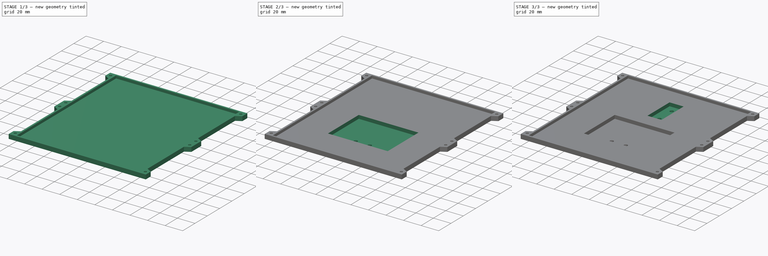
[diagram: build sequence overview — one tinted view per stage of 3, left to right]
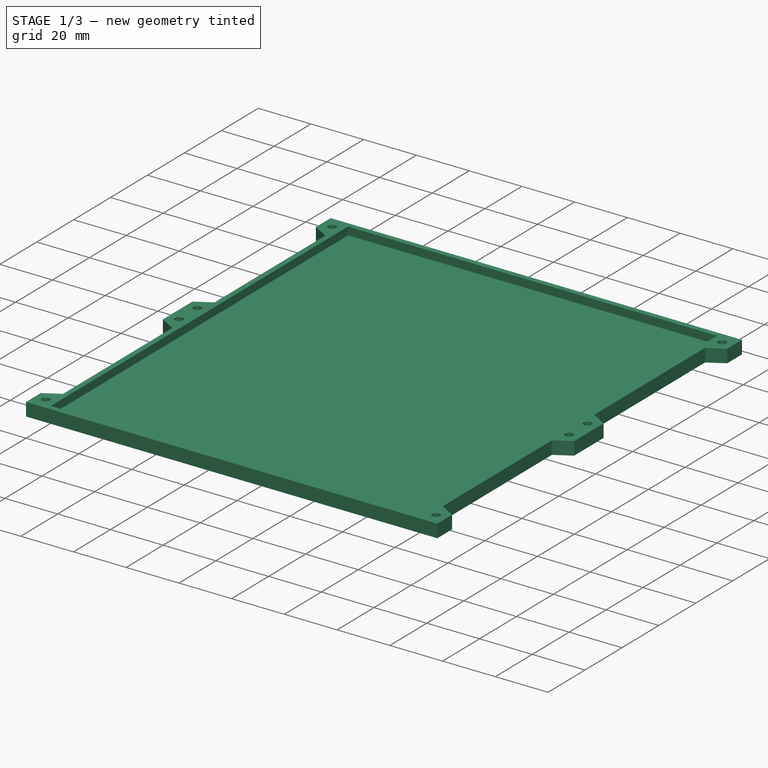
[diagram: stage 1 of 3 — iso view after this stage's code; geometry added in this stage tinted green]
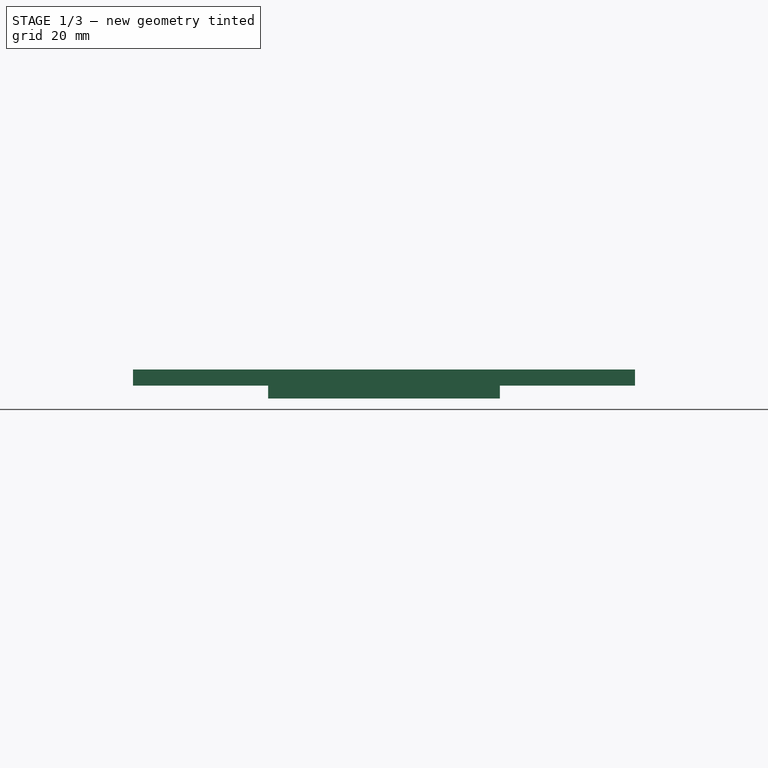
[diagram: stage 1 of 3 — front view after this stage's code; geometry added in this stage tinted green]
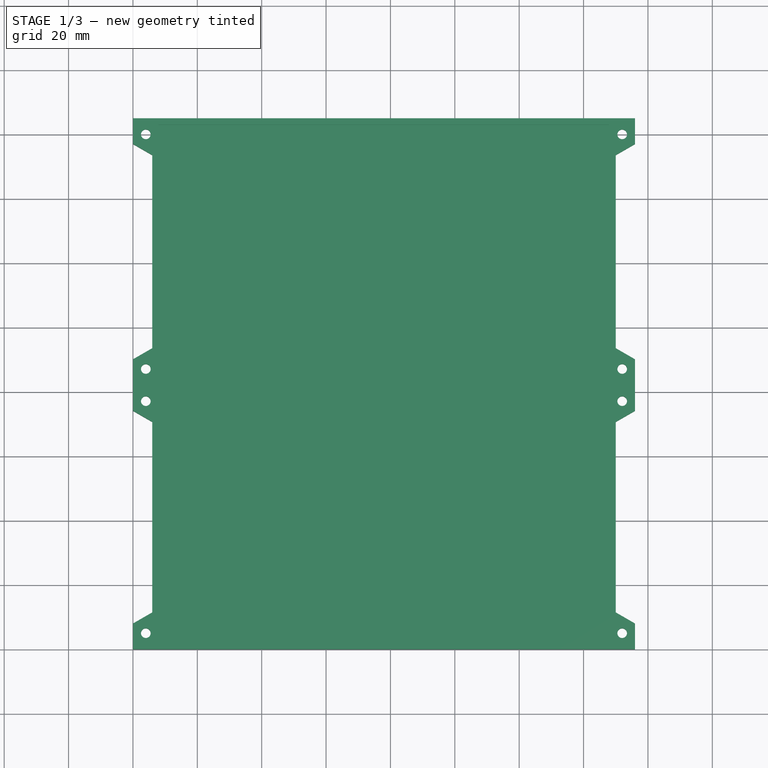
[diagram: stage 1 of 3 — top view after this stage's code; geometry added in this stage tinted green]
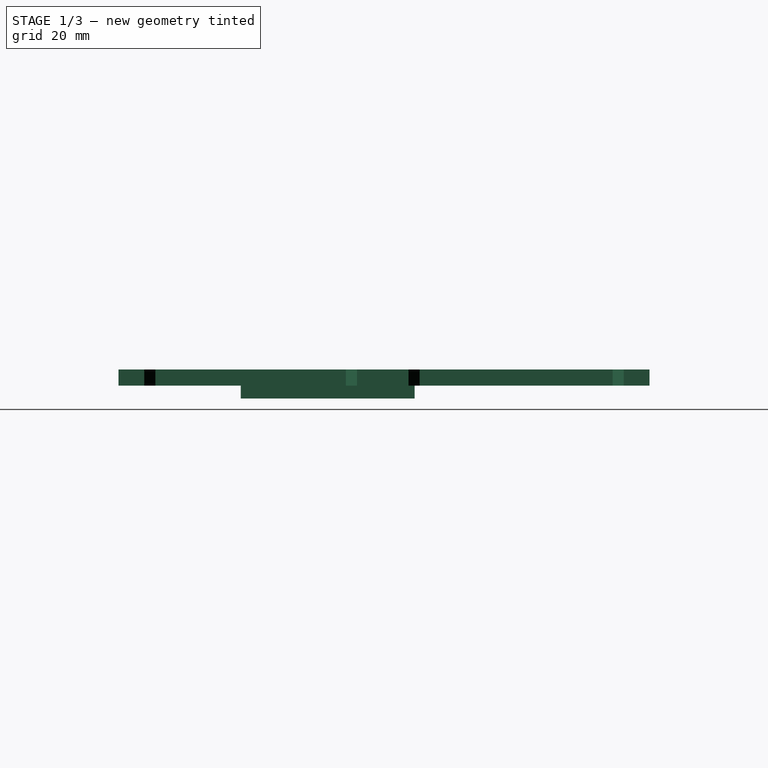
[diagram: stage 1 of 3 — right view after this stage's code; geometry added in this stage tinted green]
FCSTD DOCUMENT  (FreeCAD 0.14R3703 (Git))
Label: panel-holder
License: CC-BY 3.0
LicenseURL: http://creativecommons.org/licenses/by/3.0/
objects: Sketcher::SketchObject×8, PartDesign::Pocket×5, PartDesign::Pad×3, Part::Feature×1
note: 25 computed .brp shape members not serialized (recipe doc carries the construction recipe); baked Part::Feature solids carry a one-line shape summary decoded from their .brp

FEATURE [Sketcher::SketchObject] Sketch  label="MainShapePadSketch"
  sketch-geometry (29):
    g0: LineSegment StartX=0 StartY=0 StartZ=0 EndX=0 EndY=8 EndZ=0
    g1: LineSegment StartX=0 StartY=8 StartZ=0 EndX=6 EndY=11.4641 EndZ=0
    g2: LineSegment StartX=6 StartY=11.4641 StartZ=0 EndX=6 EndY=70.6359 EndZ=0
    g3: LineSegment StartX=6 StartY=70.6359 StartZ=0 EndX=0 EndY=74.1 EndZ=0
    g4: LineSegment StartX=0 StartY=74.1 StartZ=0 EndX=0 EndY=90.1 EndZ=0
    g5: LineSegment StartX=0 StartY=90.1 StartZ=0 EndX=6 EndY=93.5641 EndZ=0
    g6: LineSegment StartX=6 StartY=93.5641 StartZ=0 EndX=6 EndY=153.536 EndZ=0
    g7: LineSegment StartX=6 StartY=153.536 StartZ=0 EndX=0 EndY=157 EndZ=0
    g8: LineSegment StartX=0 StartY=157 StartZ=0 EndX=0 EndY=165 EndZ=0
    g9: LineSegment StartX=0 StartY=165 StartZ=0 EndX=156 EndY=165 EndZ=0
    g10: LineSegment StartX=156 StartY=165 StartZ=0 EndX=156 EndY=157 EndZ=0
    g11: LineSegment StartX=156 StartY=157 StartZ=0 EndX=150 EndY=153.536 EndZ=0
    g12: LineSegment StartX=150 StartY=153.536 StartZ=0 EndX=150 EndY=93.5641 EndZ=0
    g13: LineSegment StartX=150 StartY=93.5641 StartZ=0 EndX=156 EndY=90.1 EndZ=0
    g14: LineSegment StartX=156 StartY=90.1 StartZ=0 EndX=156 EndY=74.1 EndZ=0
    g15: LineSegment StartX=156 StartY=74.1 StartZ=0 EndX=150 EndY=70.6359 EndZ=0
    g16: LineSegment StartX=150 StartY=70.6359 StartZ=0 EndX=150 EndY=11.4641 EndZ=0
    g17: LineSegment StartX=150 StartY=11.4641 StartZ=0 EndX=156 EndY=8 EndZ=0
    g18: LineSegment StartX=156 StartY=8 StartZ=0 EndX=156 EndY=0 EndZ=0
    g19: LineSegment StartX=156 StartY=0 StartZ=0 EndX=0 EndY=0 EndZ=0
    g20: LineSegment [constr] StartX=-65 StartY=82.1 StartZ=0 EndX=235 EndY=82.1 EndZ=0
    g21: Circle CenterX=4 CenterY=5 CenterZ=0 NormalX=0 NormalY=0 NormalZ=1 Radius=1.5
    g22: Circle CenterX=152 CenterY=5 CenterZ=0 NormalX=0 NormalY=0 NormalZ=1 Radius=1.5
    g23: Circle CenterX=4 CenterY=87.1 CenterZ=0 NormalX=0 NormalY=0 NormalZ=1 Radius=1.5
    g24: Circle CenterX=4 CenterY=77.1 CenterZ=0 NormalX=0 NormalY=0 NormalZ=1 Radius=1.5
    g25: Circle CenterX=4 CenterY=160 CenterZ=0 NormalX=0 NormalY=0 NormalZ=1 Radius=1.5
    g26: Circle CenterX=152 CenterY=160 CenterZ=0 NormalX=0 NormalY=0 NormalZ=1 Radius=1.5
    g27: Circle CenterX=152 CenterY=87.1 CenterZ=0 NormalX=0 NormalY=0 NormalZ=1 Radius=1.5
    g28: Circle CenterX=152 CenterY=77.1 CenterZ=0 NormalX=0 NormalY=0 NormalZ=1 Radius=1.5
  constraints (85):
    c: Coincident(g-1,g0)
    c: Coincident(g0,g1)
    c: Coincident(g1,g2)
    c: Coincident(g2,g3)
    c: Coincident(g3,g4)
    c: Coincident(g4,g5)
    c: Coincident(g5,g6)
    c: Vertical(g6)
    c: Coincident(g6,g7)
    c: Vertical(g8)
    c: Coincident(g8,g9)
    c: Horizontal(g9)
    c: Coincident(g9,g10)
    c: Vertical(g10)
    c: Coincident(g10,g11)
    c: Coincident(g11,g12)
    c: Vertical(g12)
    c: Coincident(g12,g13)
    c: Coincident(g13,g14)
    c: Vertical(g14)
    c: Coincident(g14,g15)
    c: Coincident(g15,g16)
    c: Vertical(g16)
    c: Coincident(g16,g17)
    c: Coincident(g17,g18)
    c: PointOnObject(g18,g-1)
    c: Vertical(g18)
    c: Coincident(g18,g19)
    c: Coincident(g19,g0)
    c: Vertical(g0)
    c: Angle(g2,g1) = 2.0944
    c: Distance(g19) = 156
    c: Distance(g9) = 156
    c: PointOnObject(g8,g-2)
    c: DistanceY(g10) = -8
    c: DistanceY(g8) = 8
    c: Angle(g12,g11) = 2.0944
    c: Angle(g7,g6) = 2.0944
    c: DistanceX(g6,g7) = -6
    c: DistanceX(g11,g10) = 6
    c: DistanceY(g18,g9) = 165
    c: DistanceX(g17,g16) = -6
    c: Angle(g17,g16) = 2.0944
    c: Angle(g16,g15) = 2.0944
    c: Angle(g13,g12) = 2.0944
    c: Angle(g6,g5) = 2.0944
    c: Angle(g3,g2) = 2.0944
    c: DistanceY(g18,g17) = 8
    c: DistanceY(g14,g13) = 16
    c: DistanceY(g4) = 16
    c: DistanceY(g-1,g20) = 82.1
    c: Symmetric(g4,g3,g20)
    c: Symmetric(g13,g14,g20)
    c: Vertical(g2)
    c: DistanceX(g13,g12) = -6
    c: DistanceX(g3,g2) = 6
    c: DistanceX(g4,g5) = 6
    c: Coincident(g7,g8)
    c: DistanceX(g20) = 300
    c: DistanceY(g0) = 8
    c: DistanceX(g-1,g20) = -65
    c: DistanceY(g7,g25) = 3
    c: DistanceX(g7,g25) = 4
    c: DistanceX(g10,g26) = -4
    c: DistanceY(g10,g26) = 3
    c: DistanceY(g27,g13) = 3
    c: DistanceX(g27,g13) = 4
    c: DistanceX(g14,g28) = -4
    c: DistanceY(g28,g14) = -3
    c: DistanceX(g22,g17) = 4
    c: DistanceY(g17,g22) = -3
    c: DistanceY(g21,g0) = 3
    c: DistanceX(g21,g0) = -4
    c: DistanceY(g24,g3) = -3
    c: DistanceX(g24,g3) = -4
    c: DistanceY(g4,g23) = -3
    c: DistanceX(g23,g4) = -4
    c: Radius(g21) = 1.5
    c: Equal(g21,g22)
    c: Equal(g22,g28)
    c: Equal(g28,g27)
    c: Equal(g27,g26)
    c: Equal(g26,g25)
    c: Equal(g25,g23)
    c: Equal(g23,g24)
FEATURE [PartDesign::Pad] Pad  label="MainShapePad"
  Length = 5
  Length2 = 100
  Sketch = -> Sketch
  Type = 0
FEATURE [Sketcher::SketchObject] Sketch001  label="PanelPocketSketch"
  Placement = pos=(0,0,5) rot=(0,0,1;0rad)
  Support = -> Pad [Face30]
  sketch-geometry (4):
    g0: LineSegment StartX=8 StartY=2 StartZ=0 EndX=148 EndY=2 EndZ=0
    g1: LineSegment StartX=148 StartY=2 StartZ=0 EndX=148 EndY=163 EndZ=0
    g2: LineSegment StartX=148 StartY=163 StartZ=0 EndX=8 EndY=163 EndZ=0
    g3: LineSegment StartX=8 StartY=163 StartZ=0 EndX=8 EndY=2 EndZ=0
  constraints (12):
    c: Coincident(g0,g1)
    c: Coincident(g1,g2)
    c: Coincident(g2,g3)
    c: Coincident(g3,g0)
    c: Horizontal(g0)
    c: Horizontal(g2)
    c: Vertical(g1)
    c: Vertical(g3)
    c: DistanceY(g1) = 161
    c: DistanceX(g2) = -140
    c: DistanceX(g-1,g0) = 8
    c: DistanceY(g-1,g0) = 2
FEATURE [PartDesign::Pocket] Pocket001  label="PanelPocket"
  Length = 3
  Sketch = -> Sketch001
  Type = 0
FEATURE [Sketcher::SketchObject] Sketch002  label="SolderJointPadSketch"
  Placement = pos=(0,0,0) rot=(1,0,0;3.14159rad)
  Support = -> Pocket001 [Face4]
  sketch-geometry (4):
    g0: LineSegment StartX=42 StartY=-38 StartZ=0 EndX=114 EndY=-38 EndZ=0
    g1: LineSegment StartX=114 StartY=-38 StartZ=0 EndX=114 EndY=-92 EndZ=0
    g2: LineSegment StartX=114 StartY=-92 StartZ=0 EndX=42 EndY=-92 EndZ=0
    g3: LineSegment StartX=42 StartY=-92 StartZ=0 EndX=42 EndY=-38 EndZ=0
  constraints (12):
    c: Coincident(g0,g1)
    c: Coincident(g1,g2)
    c: Coincident(g2,g3)
    c: Coincident(g3,g0)
    c: Horizontal(g0)
    c: Horizontal(g2)
    c: Vertical(g1)
    c: Vertical(g3)
    c: DistanceY(g1) = -54
    c: DistanceX(g-1,g0) = 42
    c: DistanceY(g-1,g0) = -38
    c: DistanceX(g2) = -72
FEATURE [PartDesign::Pad] Pad001  label="SolderJointPad"
  Length = 4
  Length2 = 100
  Sketch = -> Sketch002
  Type = 0
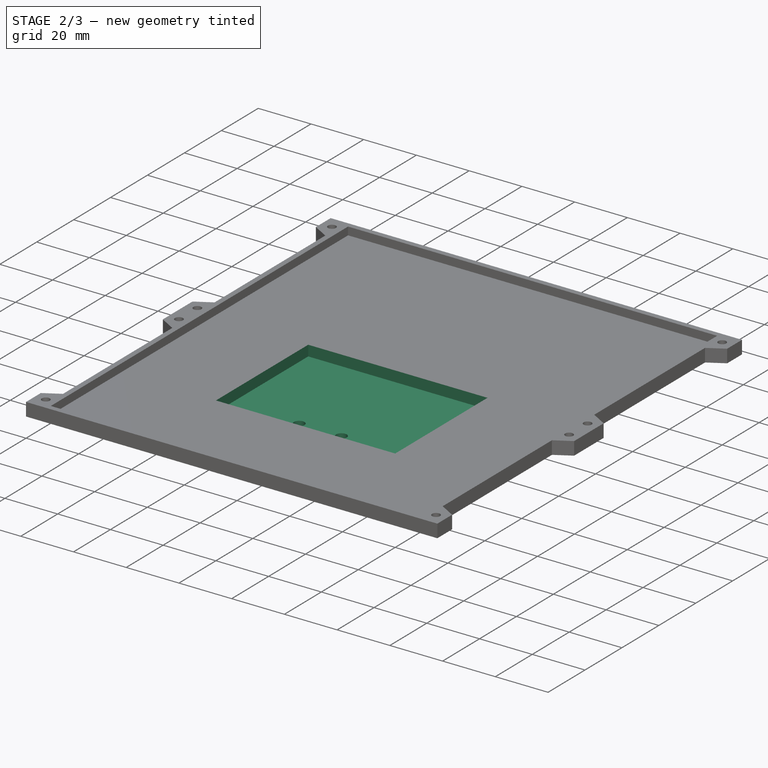
[diagram: stage 2 of 3 — iso view after this stage's code; geometry added in this stage tinted green]
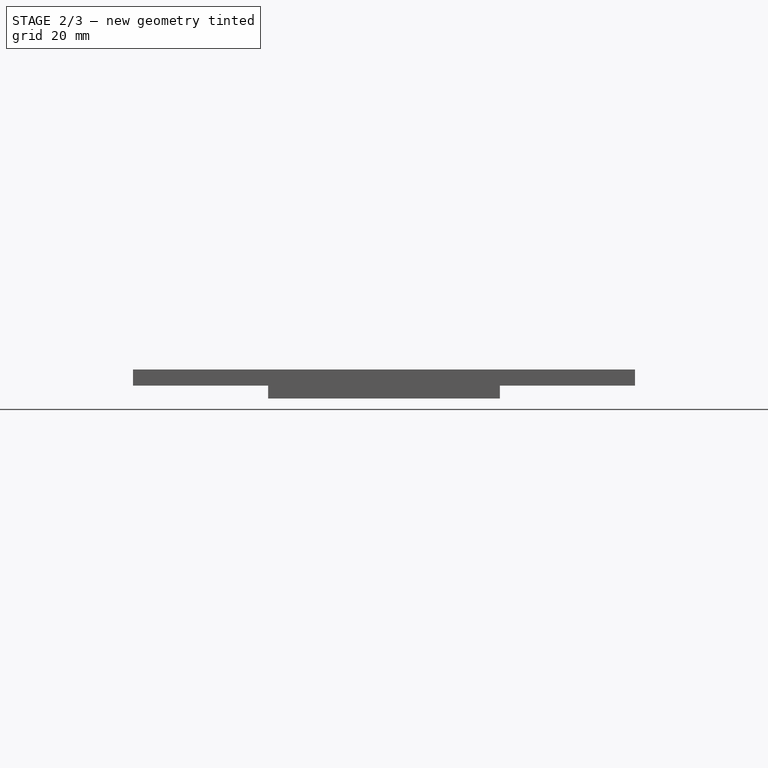
[diagram: stage 2 of 3 — front view after this stage's code; geometry added in this stage tinted green]
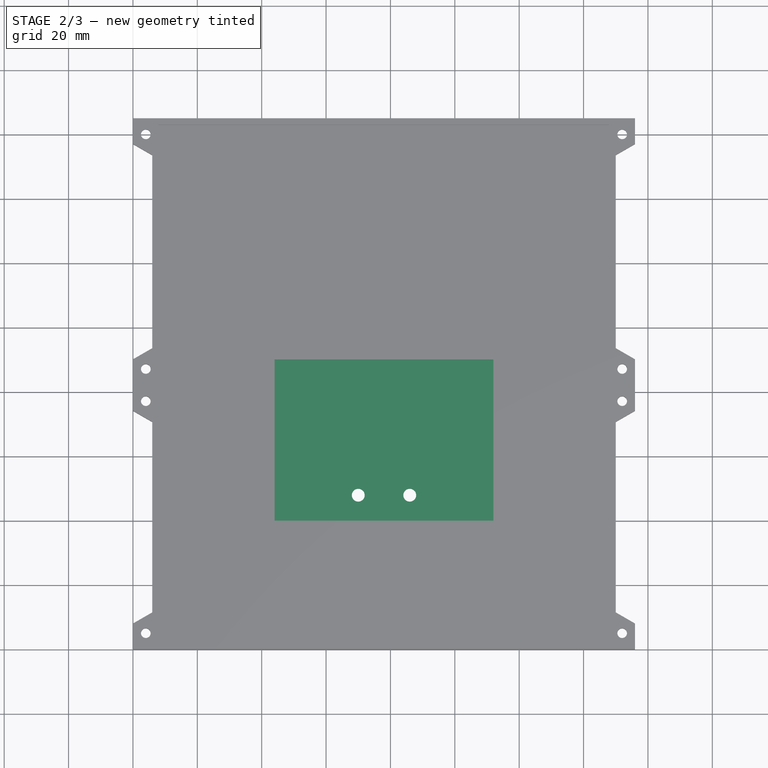
[diagram: stage 2 of 3 — top view after this stage's code; geometry added in this stage tinted green]
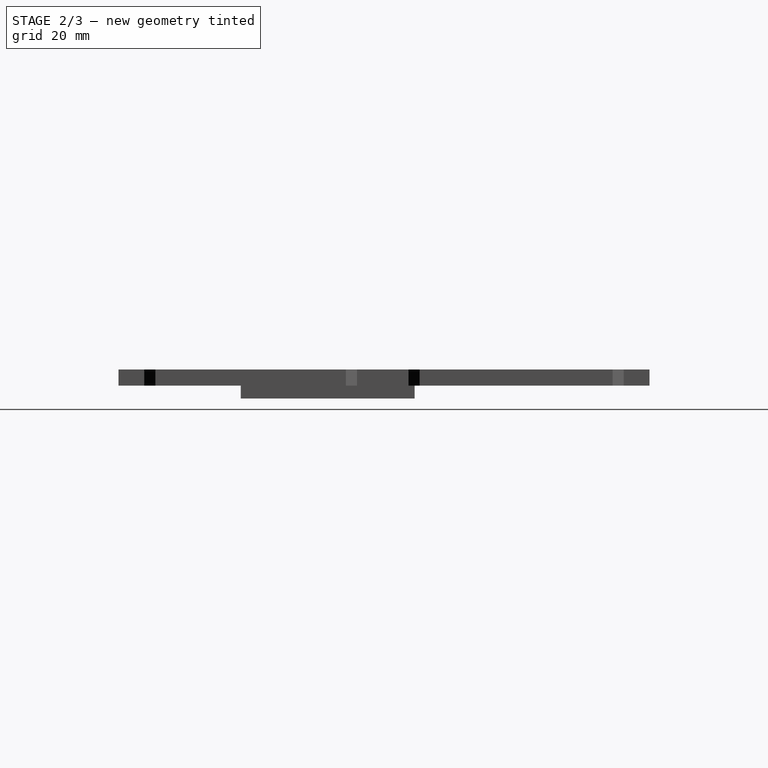
[diagram: stage 2 of 3 — right view after this stage's code; geometry added in this stage tinted green]
FEATURE [Sketcher::SketchObject] Sketch003  label="SolderJointPocketSketch"
  ExternalGeometry = -> [Pad001]
  Placement = pos=(0,0,2) rot=(0,0,1;0rad)
  Support = -> Pad001 [Face40]
  sketch-geometry (4):
    g0: LineSegment StartX=44 StartY=90 StartZ=0 EndX=112 EndY=90 EndZ=0
    g1: LineSegment StartX=112 StartY=90 StartZ=0 EndX=112 EndY=40 EndZ=0
    g2: LineSegment StartX=112 StartY=40 StartZ=0 EndX=44 EndY=40 EndZ=0
    g3: LineSegment StartX=44 StartY=40 StartZ=0 EndX=44 EndY=90 EndZ=0
  constraints (12):
    c: Coincident(g0,g1)
    c: Coincident(g1,g2)
    c: Coincident(g2,g3)
    c: Coincident(g3,g0)
    c: Horizontal(g0)
    c: Horizontal(g2)
    c: Vertical(g1)
    c: Vertical(g3)
    c: DistanceY(g1) = -50
    c: DistanceX(g-1,g2) = 44
    c: DistanceX(g1,g-3) = 44
    c: DistanceY(g-1,g2) = 40
FEATURE [PartDesign::Pocket] Pocket002  label="SolderJointPocket"
  Length = 4
  Sketch = -> Sketch003
  Type = 0
FEATURE [Sketcher::SketchObject] Sketch004  label="WirePocketSketch"
  Placement = pos=(0,0,-2) rot=(0,0,1;0rad)
  Support = -> Pocket002 [Face45]
  sketch-geometry (3):
    g0: Circle CenterX=70 CenterY=48 CenterZ=0 NormalX=0 NormalY=0 NormalZ=1 Radius=2
    g1: Circle CenterX=86 CenterY=48 CenterZ=0 NormalX=0 NormalY=0 NormalZ=1 Radius=2
    g2: LineSegment [constr] StartX=78 StartY=175.672 StartZ=0 EndX=78 EndY=-20.8391 EndZ=0
  constraints (7):
    c: DistanceX(g-1,g0) = 70
    c: DistanceY(g-1,g0) = 48
    c: Radius(g0) = 2
    c: Equal(g0,g1)
    c: Vertical(g2)
    c: DistanceX(g-1,g2) = 78
    c: Symmetric(g0,g1,g2)
FEATURE [PartDesign::Pocket] Pocket003  label="WirePocket"
  Length = 2.5
  Sketch = -> Sketch004
  Type = 0
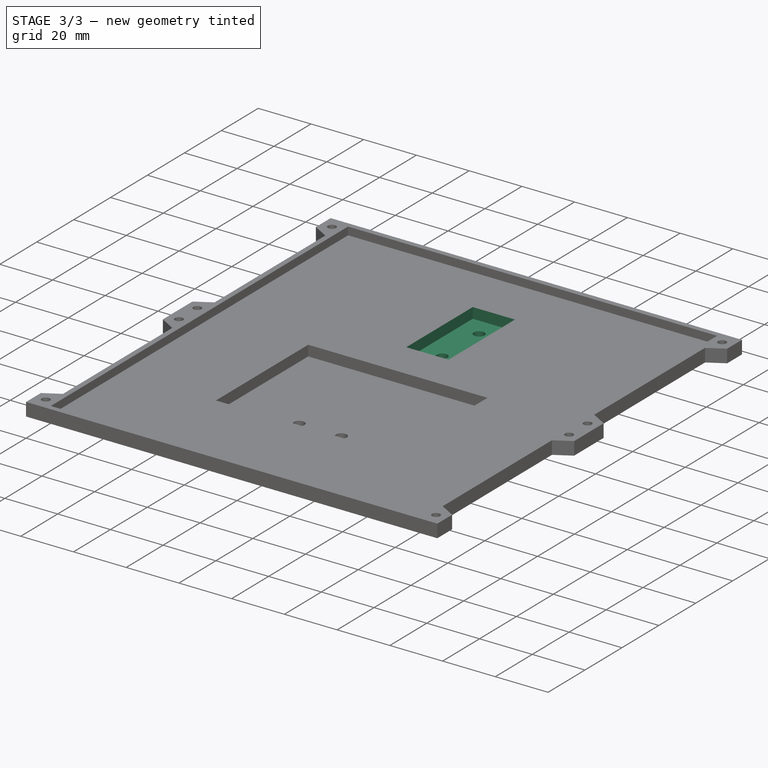
[diagram: stage 3 of 3 — iso view after this stage's code; geometry added in this stage tinted green]
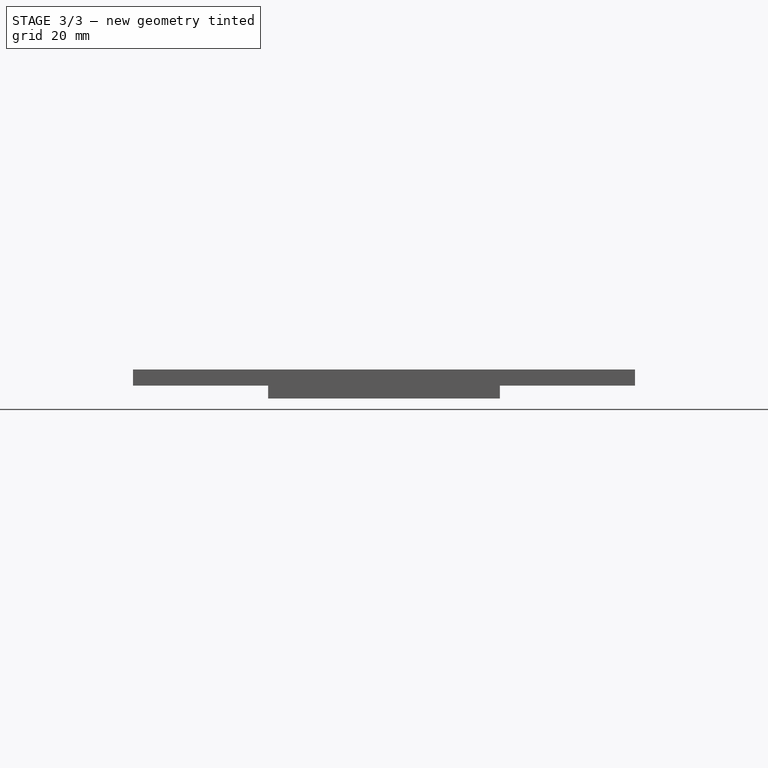
[diagram: stage 3 of 3 — front view after this stage's code; geometry added in this stage tinted green]
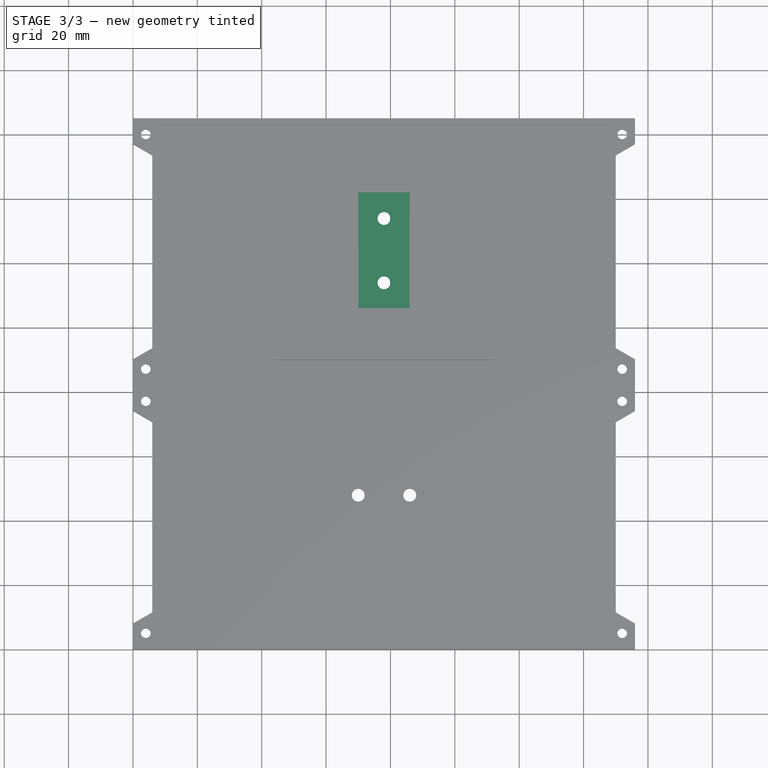
[diagram: stage 3 of 3 — top view after this stage's code; geometry added in this stage tinted green]
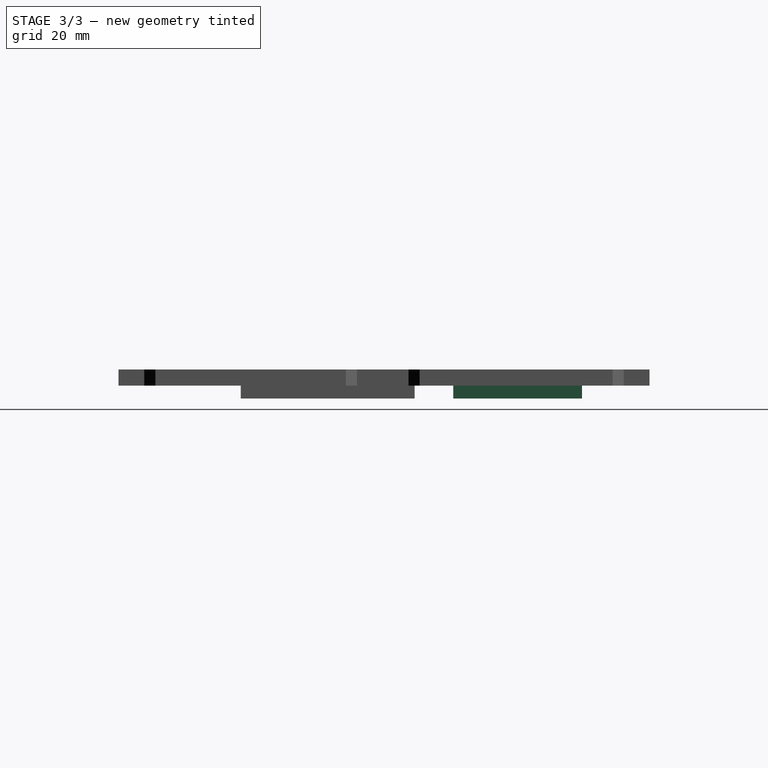
[diagram: stage 3 of 3 — right view after this stage's code; geometry added in this stage tinted green]
FEATURE [Sketcher::SketchObject] Sketch005  label="BoltPadSketch"
  Placement = pos=(0,0,0) rot=(1,0,0;3.14159rad)
  Support = -> Pocket003 [Face4]
  sketch-geometry (4):
    g0: LineSegment StartX=68 StartY=-144 StartZ=0 EndX=68 EndY=-104 EndZ=0
    g1: LineSegment StartX=68 StartY=-104 StartZ=0 EndX=88 EndY=-104 EndZ=0
    g2: LineSegment StartX=88 StartY=-104 StartZ=0 EndX=88 EndY=-144 EndZ=0
    g3: LineSegment StartX=68 StartY=-144 StartZ=0 EndX=88 EndY=-144 EndZ=0
  constraints (12):
    c: Vertical(g0)
    c: Coincident(g0,g1)
    c: Horizontal(g1)
    c: Coincident(g1,g2)
    c: Vertical(g2)
    c: DistanceY(g2) = -40
    c: Coincident(g3,g0)
    c: Coincident(g3,g2)
    c: Distance(g3) = 20
    c: DistanceY(g-1,g0) = -104
    c: DistanceX(g-1,g0) = 68
    c: Horizontal(g3)
FEATURE [PartDesign::Pad] Pad002  label="BoltPad"
  Length = 4
  Length2 = 100
  Sketch = -> Sketch005
  Type = 0
FEATURE [Sketcher::SketchObject] Sketch006  label="BoltSpacePocketSketch"
  ExternalGeometry = -> [Pad002]
  Placement = pos=(0,0,2) rot=(0,0,1;0rad)
  Support = -> Pad002 [Face45]
  sketch-geometry (4):
    g0: LineSegment StartX=70 StartY=142 StartZ=0 EndX=86 EndY=142 EndZ=0
    g1: LineSegment StartX=86 StartY=142 StartZ=0 EndX=86 EndY=106 EndZ=0
    g2: LineSegment StartX=86 StartY=106 StartZ=0 EndX=70 EndY=106 EndZ=0
    g3: LineSegment StartX=70 StartY=106 StartZ=0 EndX=70 EndY=142 EndZ=0
  constraints (12):
    c: Coincident(g0,g1)
    c: Coincident(g1,g2)
    c: Coincident(g2,g3)
    c: Coincident(g3,g0)
    c: Horizontal(g0)
    c: Horizontal(g2)
    c: Vertical(g1)
    c: Vertical(g3)
    c: Distance(g3) = 36
    c: DistanceX(g-1,g2) = 70
    c: DistanceY(g-1,g2) = 106
    c: Distance(g0) = 16
FEATURE [PartDesign::Pocket] Pocket  label="BoltSpacePocket"
  Length = 4
  Sketch = -> Sketch006
  Type = 0
FEATURE [Sketcher::SketchObject] Sketch007  label="BoltPocketSketch"
  Placement = pos=(0,0,-2) rot=(0,0,1;0rad)
  Support = -> Pocket [Face57]
  sketch-geometry (3):
    g0: Circle CenterX=78 CenterY=134 CenterZ=0 NormalX=0 NormalY=0 NormalZ=1 Radius=2
    g1: Circle CenterX=78 CenterY=114 CenterZ=0 NormalX=0 NormalY=0 NormalZ=1 Radius=2
    g2: LineSegment [constr] StartX=-43.8108 StartY=124 StartZ=0 EndX=224.878 EndY=124 EndZ=0
  constraints (8):
    c: Radius(g0) = 2
    c: Equal(g0,g1)
    c: DistanceY(g1,g0) = 20
    c: DistanceX(g-1,g1) = 78
    c: DistanceX(g-1,g0) = 78
    c: Horizontal(g2)
    c: DistanceY(g-1,g2) = 124
    c: Symmetric(g0,g1,g2)
FEATURE [PartDesign::Pocket] Pocket005002002  label="BoltPocket"
  Length = 2
  Sketch = -> Sketch007
  Type = 0
FEATURE [Part::Feature] Pocket005002002001  label="PanelHolder"
  shape: bbox 156 x 165 x 9 mm, 59 faces (baked)
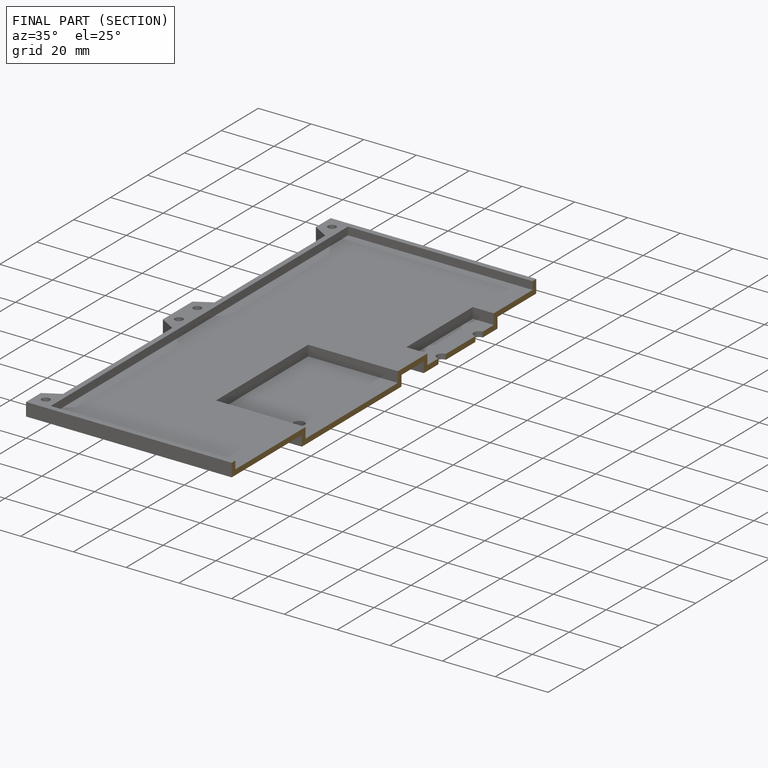
[diagram: finished part — half-section view (interior)]
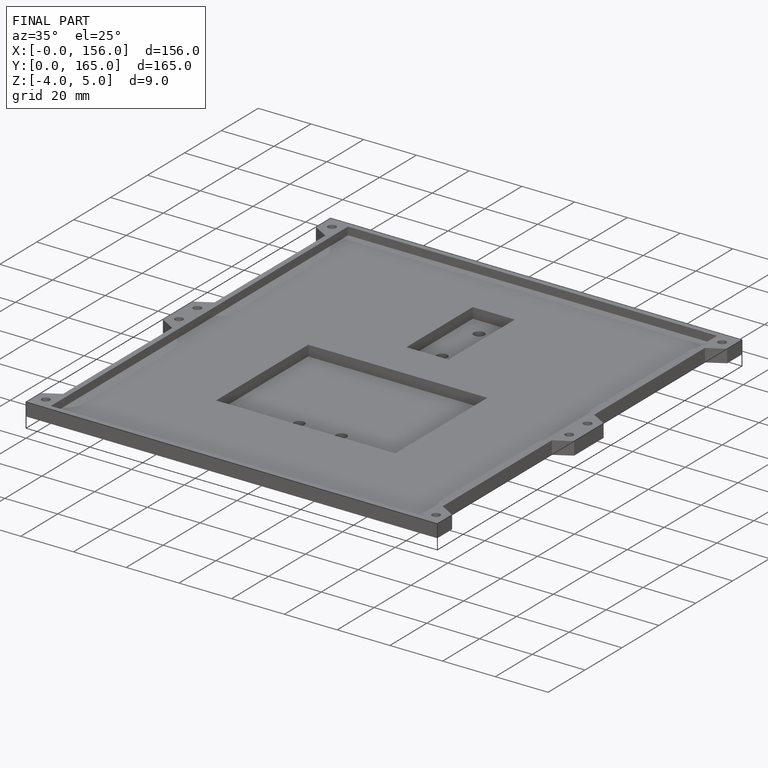
[diagram: finished part — iso view with bounding-box wireframe]
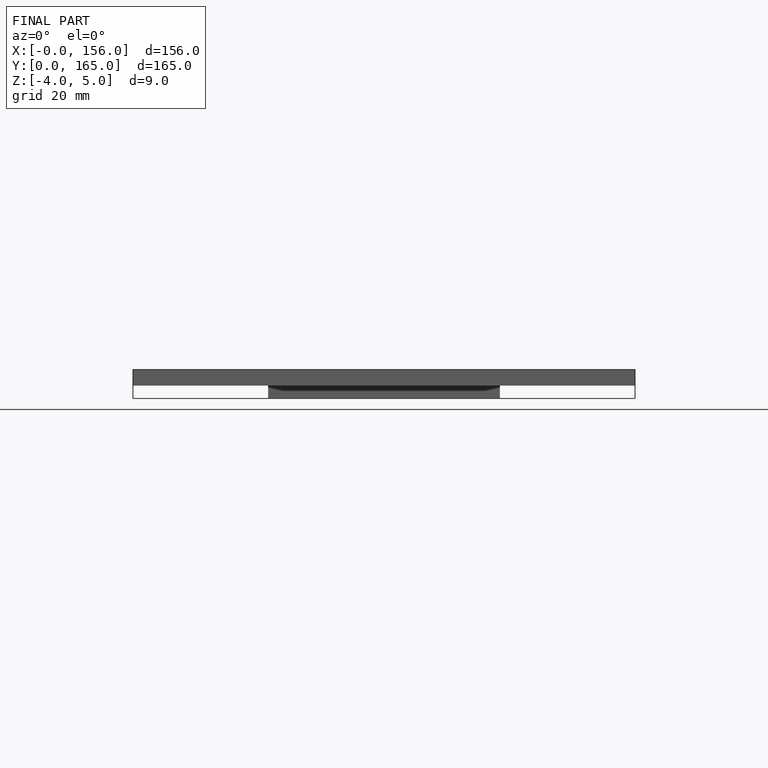
[diagram: finished part — front view with bounding-box wireframe]
